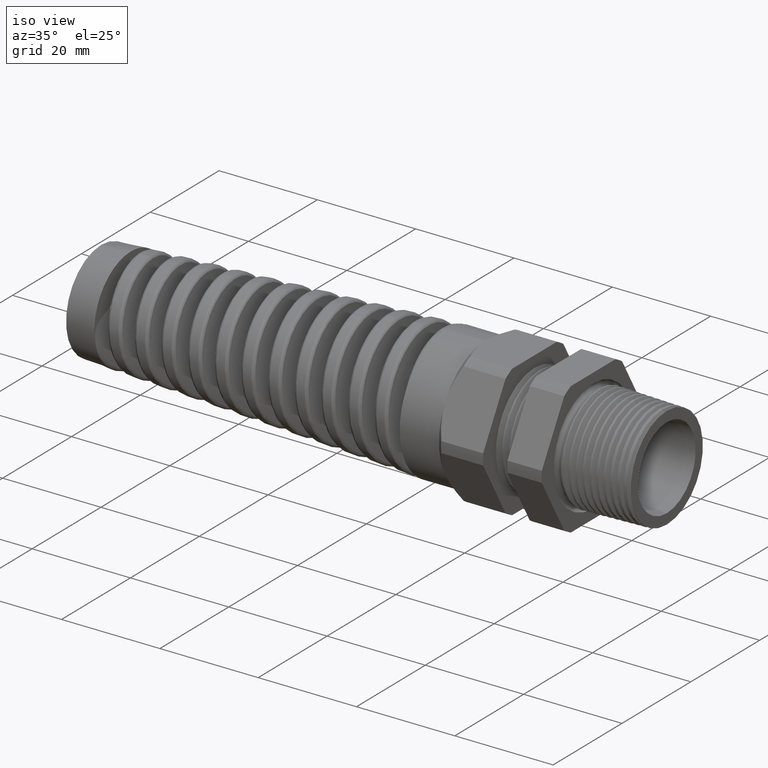
[diagram: clean part render]
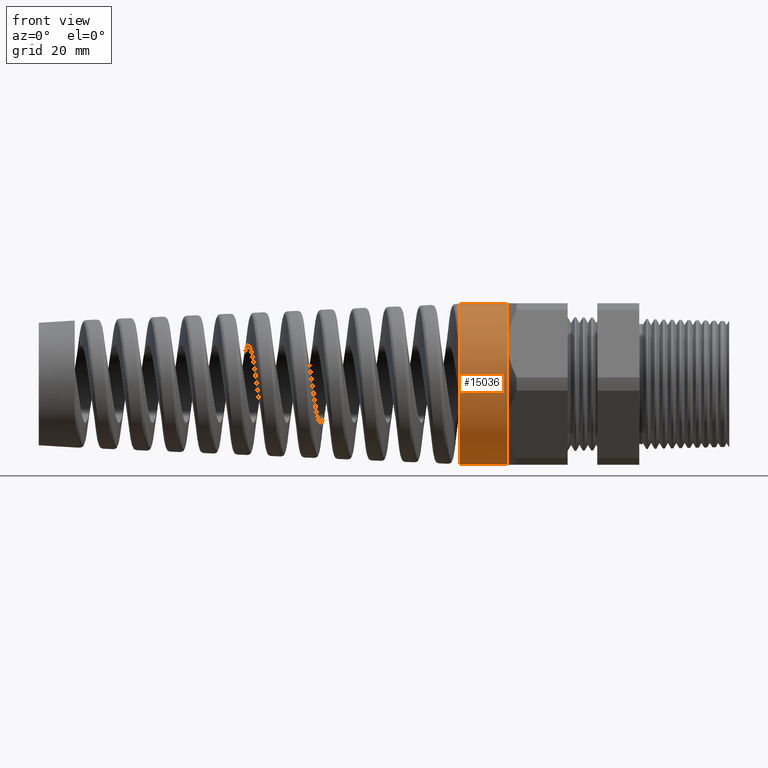
[diagram: tour spotlight — one face highlighted and labeled with its STEP entity id]
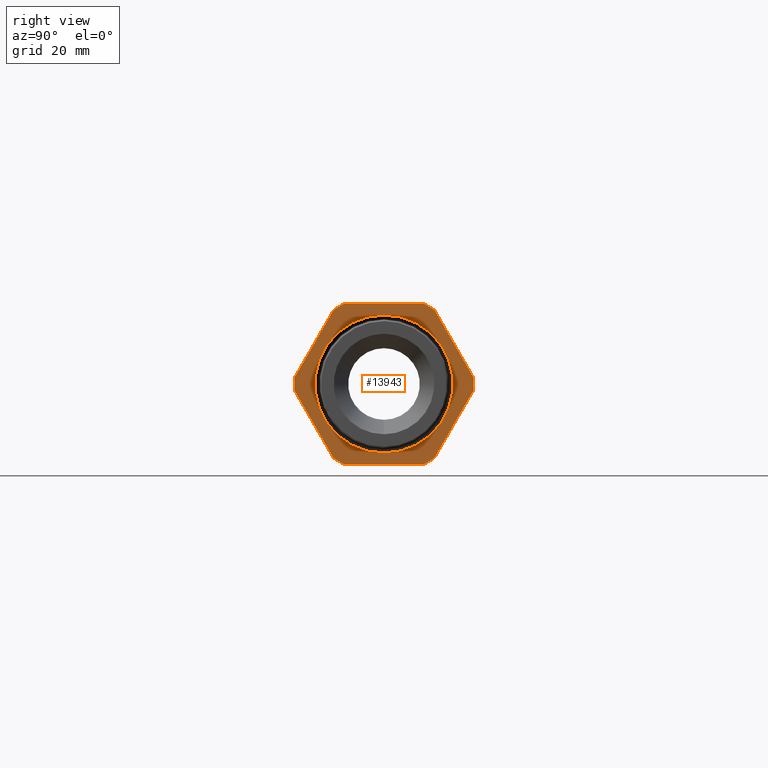
[diagram: tour spotlight — one face highlighted and labeled with its STEP entity id]
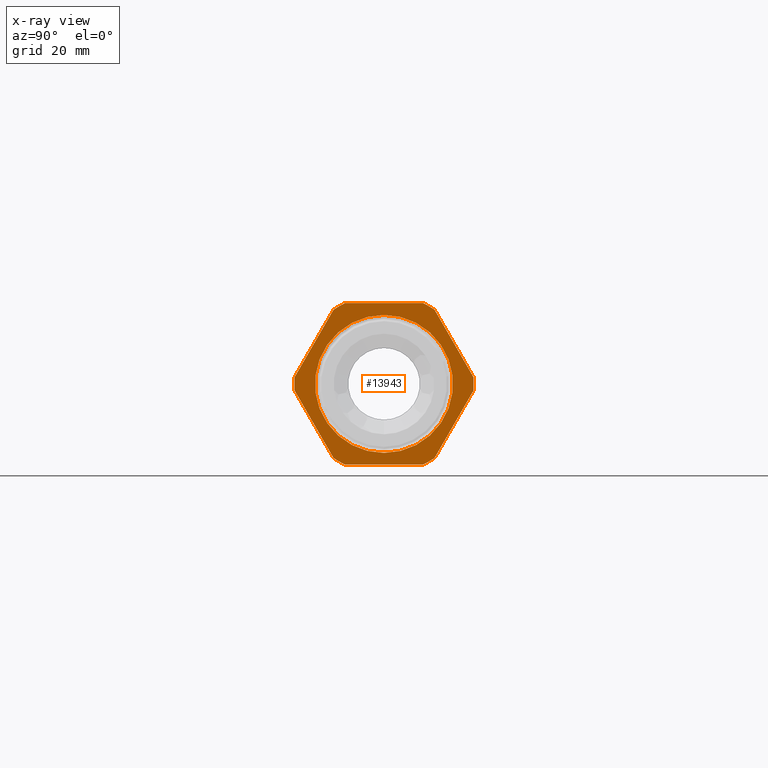
[diagram: x-ray of the same camera — body ghosted, this tour face saturated]
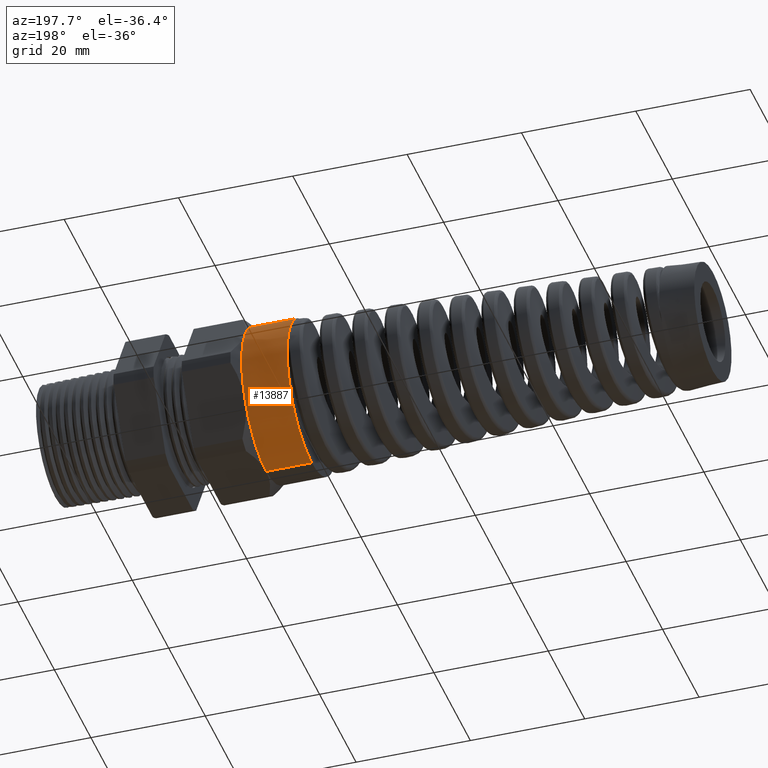
[diagram: tour spotlight — one face highlighted and labeled with its STEP entity id]
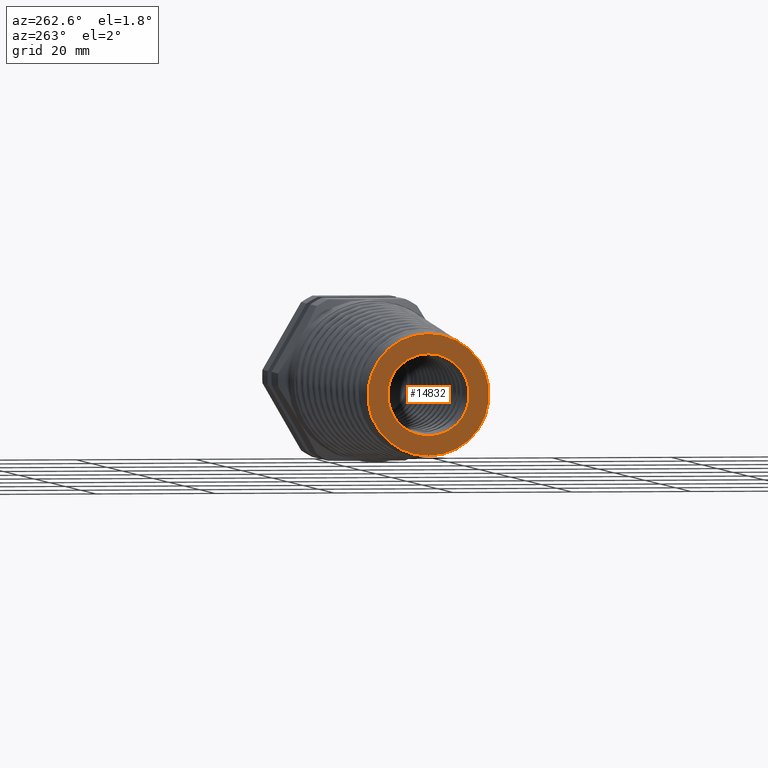
[diagram: tour spotlight — one face highlighted and labeled with its STEP entity id]
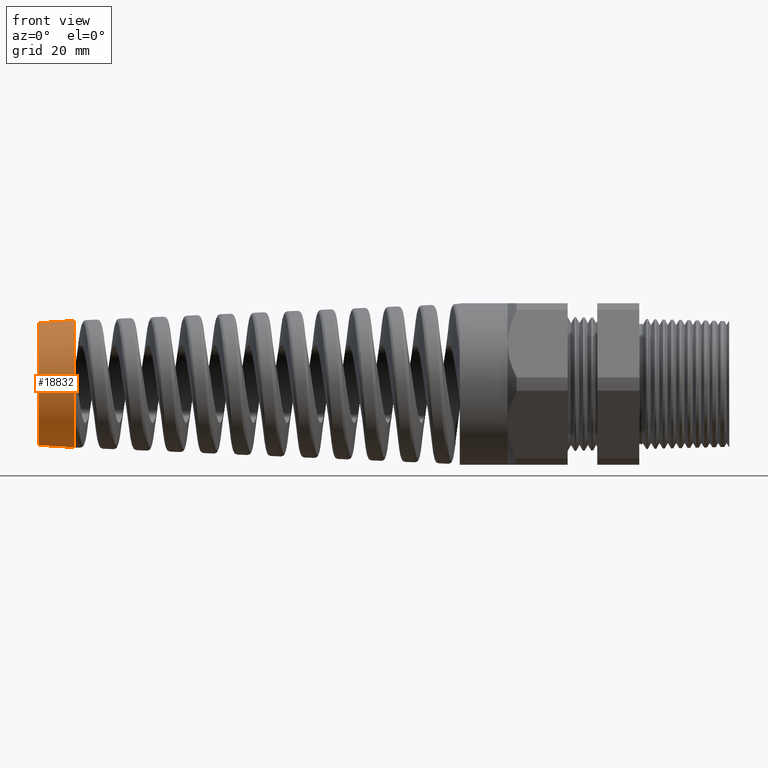
[diagram: tour spotlight — one face highlighted and labeled with its STEP entity id]
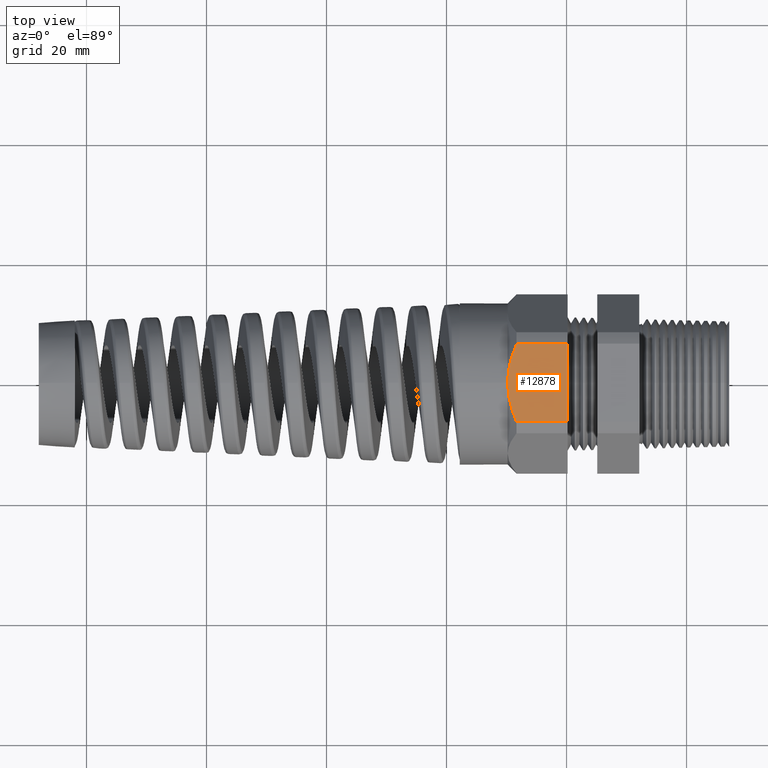
[diagram: tour spotlight — one face highlighted and labeled with its STEP entity id]
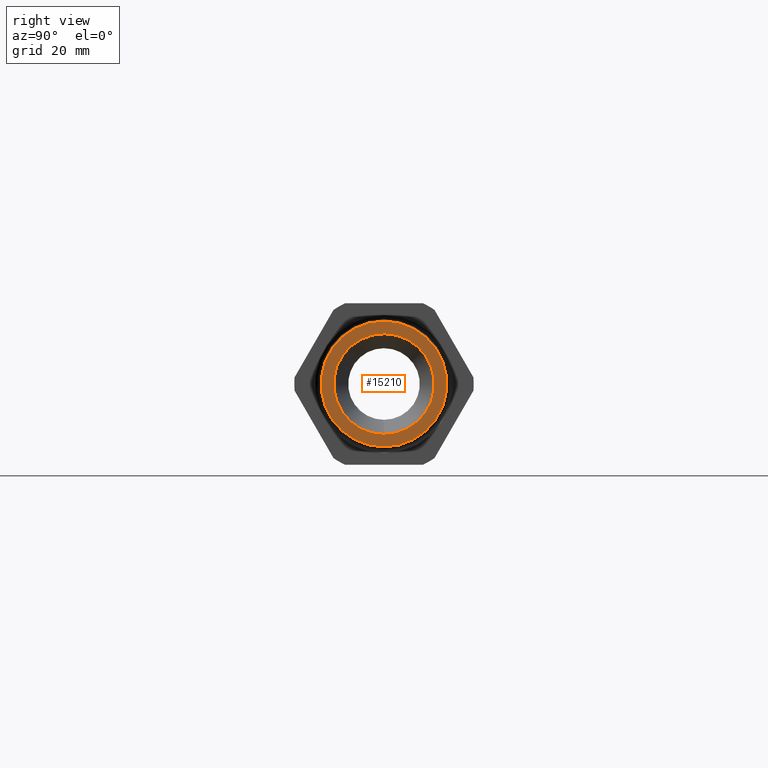
[diagram: tour spotlight — one face highlighted and labeled with its STEP entity id]
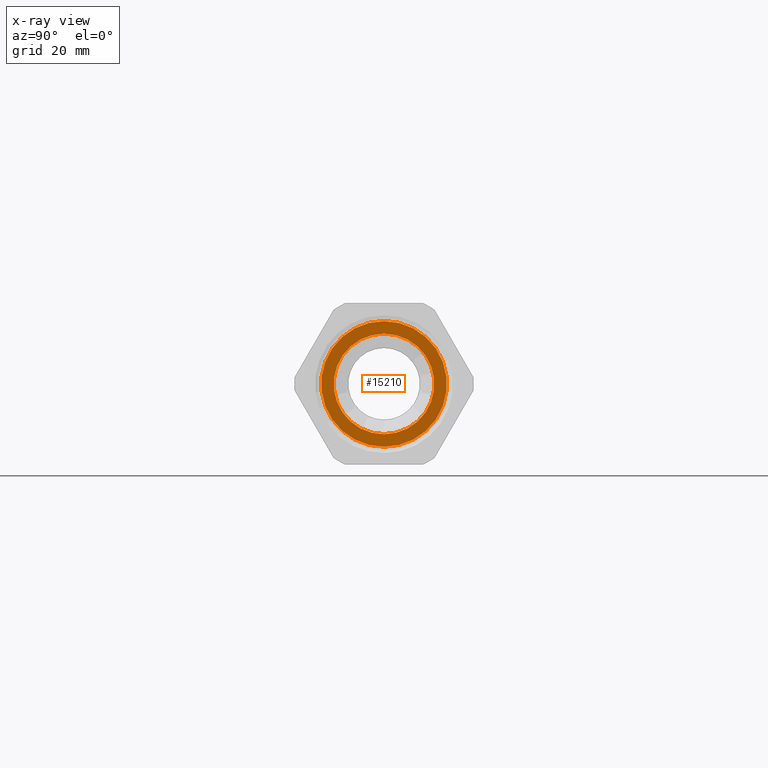
[diagram: x-ray of the same camera — body ghosted, this tour face saturated]
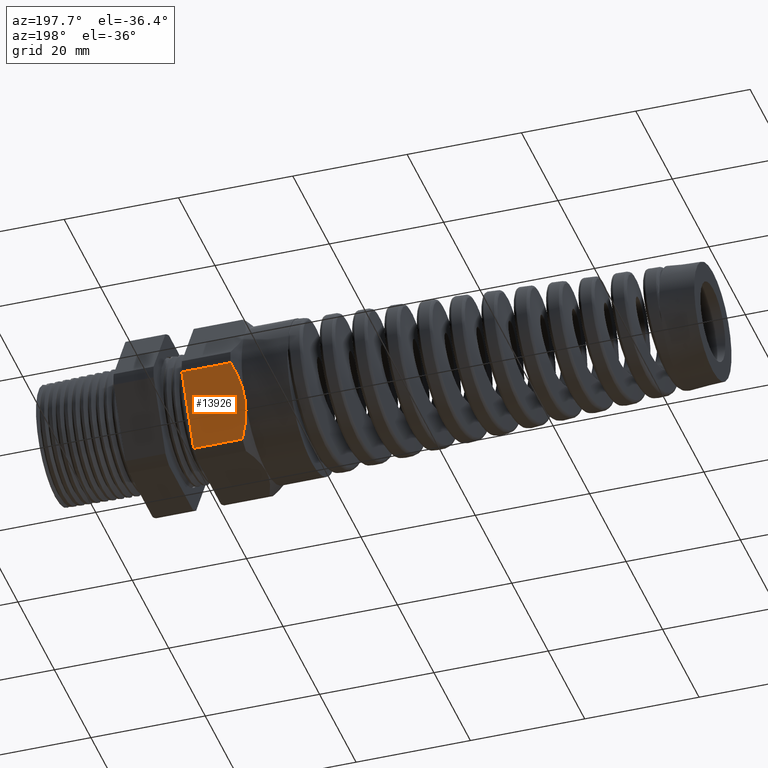
[diagram: tour spotlight — one face highlighted and labeled with its STEP entity id]
A machine part: a face-by-face anatomy tour. The part has 210 B-rep faces; the first image is the clean iso view, then the 8 largest visible faces are spotlighted one at a time (largest first), each with its STEP entity span.

Face 1 — front view, entity #15036. In plain terms, the highlighted cylindrical surface (partial cylindrical patch) has radius 13.462 mm, axis along (1, 0, 0).
Definition (entity closure, byte-faithful):
#576 = VERTEX_POINT ( 'NONE', #1642 ) ;
#1642 = CARTESIAN_POINT ( 'NONE',  ( -1.173779527559055200, -0.4589934640057526900, -0.2650000000000002400 ) ) ;
#8881 = DIRECTION ( 'NONE',  ( 1.000000000000000000, 0.0000000000000000000, 0.0000000000000000000 ) ) ;
#8882 = VECTOR ( 'NONE', #8881, 39.37007874015748100 ) ;
#8883 = CARTESIAN_POINT ( 'NONE',  ( 0.0000000000000000000, 0.0000000000000000000, -0.5299999999999999200 ) ) ;
#8884 = LINE ( 'NONE', #8883, #8882 ) ;
#9024 = CARTESIAN_POINT ( 'NONE',  ( -1.173779527559055200, 0.0000000000000000000, 0.5299999999999999200 ) ) ;
#9026 = CARTESIAN_POINT ( 'NONE',  ( -1.173779527559055200, 0.0000000000000000000, -0.5300000000000001400 ) ) ;
#9063 = CARTESIAN_POINT ( 'NONE',  ( -1.487985188310925600, 6.490628035480971200E-017, 0.5299999999999999200 ) ) ;
#9064 = CARTESIAN_POINT ( 'NONE',  ( -1.487985188310925600, 0.0000000000000000000, -0.5299999999999999200 ) ) ;
#9117 = DIRECTION ( 'NONE',  ( 1.000000000000000000, 0.0000000000000000000, 0.0000000000000000000 ) ) ;
#9118 = VECTOR ( 'NONE', #9117, 39.37007874015748100 ) ;
#9119 = CARTESIAN_POINT ( 'NONE',  ( 0.0000000000000000000, 6.490628035480971200E-017, 0.5299999999999999200 ) ) ;
#9120 = LINE ( 'NONE', #9119, #9118 ) ;
#11656 = DIRECTION ( 'NONE',  ( 0.0000000000000000000, 0.0000000000000000000, -1.000000000000000000 ) ) ;
#11657 = DIRECTION ( 'NONE',  ( 1.000000000000000000, 0.0000000000000000000, 0.0000000000000000000 ) ) ;
#11658 = CARTESIAN_POINT ( 'NONE',  ( -1.173779527559055200, 0.0000000000000000000, 0.0000000000000000000 ) ) ;
#11659 = AXIS2_PLACEMENT_3D ( 'NONE', #11658, #11657, #11656 ) ;
#11660 = CIRCLE ( 'NONE', #11659, 0.5299999999999999200 ) ;
#11688 = FACE_OUTER_BOUND ( 'NONE', #15037, .T. ) ;
#11694 = CARTESIAN_POINT ( 'NONE',  ( 0.0000000000000000000, 0.0000000000000000000, 0.0000000000000000000 ) ) ;
#11741 = DIRECTION ( 'NONE',  ( 0.0000000000000000000, 0.0000000000000000000, -1.000000000000000000 ) ) ;
#11742 = DIRECTION ( 'NONE',  ( 1.000000000000000000, 0.0000000000000000000, 0.0000000000000000000 ) ) ;
#11743 = AXIS2_PLACEMENT_3D ( 'NONE', #11694, #11742, #11741 ) ;
#11744 = CYLINDRICAL_SURFACE ( 'NONE', #11743, 0.5299999999999999200 ) ;
#11851 = DIRECTION ( 'NONE',  ( 0.0000000000000000000, 0.0000000000000000000, -1.000000000000000000 ) ) ;
#11852 = DIRECTION ( 'NONE',  ( 1.000000000000000000, 0.0000000000000000000, 0.0000000000000000000 ) ) ;
#11853 = CARTESIAN_POINT ( 'NONE',  ( -1.173779527559055200, 0.0000000000000000000, 0.0000000000000000000 ) ) ;
#11854 = AXIS2_PLACEMENT_3D ( 'NONE', #11853, #11852, #11851 ) ;
#11855 = CIRCLE ( 'NONE', #11854, 0.5299999999999999200 ) ;
#11856 = DIRECTION ( 'NONE',  ( 0.0000000000000000000, 0.0000000000000000000, -1.000000000000000000 ) ) ;
#11857 = DIRECTION ( 'NONE',  ( 1.000000000000000000, 0.0000000000000000000, 0.0000000000000000000 ) ) ;
#11858 = CARTESIAN_POINT ( 'NONE',  ( -1.173779527559055200, 0.0000000000000000000, 0.0000000000000000000 ) ) ;
#11859 = AXIS2_PLACEMENT_3D ( 'NONE', #11858, #11857, #11856 ) ;
#11860 = CIRCLE ( 'NONE', #11859, 0.5299999999999999200 ) ;
#11861 = DIRECTION ( 'NONE',  ( 0.0000000000000000000, 0.0000000000000000000, 1.000000000000000000 ) ) ;
#11862 = DIRECTION ( 'NONE',  ( -1.000000000000000000, 0.0000000000000000000, 0.0000000000000000000 ) ) ;
#11863 = CARTESIAN_POINT ( 'NONE',  ( -1.487985188310925600, 0.0000000000000000000, 0.0000000000000000000 ) ) ;
#11864 = AXIS2_PLACEMENT_3D ( 'NONE', #11863, #11862, #11861 ) ;
#11865 = CIRCLE ( 'NONE', #11864, 0.5299999999999999200 ) ;
#12842 = VERTEX_POINT ( 'NONE', #18774 ) ;
#13845 = EDGE_CURVE ( 'NONE', #13952, #13931, #8884, .T. ) ;
#13931 = VERTEX_POINT ( 'NONE', #9026 ) ;
#13934 = VERTEX_POINT ( 'NONE', #9024 ) ;
#13952 = VERTEX_POINT ( 'NONE', #9064 ) ;
#13953 = VERTEX_POINT ( 'NONE', #9063 ) ;
#14025 = EDGE_CURVE ( 'NONE', #13953, #13934, #9120, .T. ) ;
#15019 = ORIENTED_EDGE ( 'NONE', *, *, #15020, .F. ) ;
#15020 = EDGE_CURVE ( 'NONE', #13934, #12842, #11660, .T. ) ;
#15036 = ADVANCED_FACE ( 'NONE', ( #11688 ), #11744, .T. ) ;
#15037 = EDGE_LOOP ( 'NONE', ( #15038, #15039, #15094, #15095, #15097, #15019 ) ) ;
#15038 = ORIENTED_EDGE ( 'NONE', *, *, #14025, .F. ) ;
#15039 = ORIENTED_EDGE ( 'NONE', *, *, #15093, .F. ) ;
#15093 = EDGE_CURVE ( 'NONE', #13952, #13953, #11865, .T. ) ;
#15094 = ORIENTED_EDGE ( 'NONE', *, *, #13845, .T. ) ;
#15095 = ORIENTED_EDGE ( 'NONE', *, *, #15096, .F. ) ;
#15096 = EDGE_CURVE ( 'NONE', #576, #13931, #11860, .T. ) ;
#15097 = ORIENTED_EDGE ( 'NONE', *, *, #15098, .F. ) ;
#15098 = EDGE_CURVE ( 'NONE', #12842, #576, #11855, .T. ) ;
#18774 = CARTESIAN_POINT ( 'NONE',  ( -1.173779527559055200, -0.4589934640057528600, 0.2649999999999998500 ) ) ;

Face 2 — right view, entity #13943. An x-ray twin of the same camera follows (body ghosted, this face saturated) — the face is partly hidden behind the body. In plain terms, the highlighted planar face has unit normal (1, 0, 0).
Definition (entity closure, byte-faithful):
#6318 = CARTESIAN_POINT ( 'NONE',  ( -0.3100000000000000000, 0.0000000000000000000, -0.4526738836800274200 ) ) ;
#6335 = DIRECTION ( 'NONE',  ( 0.0000000000000000000, 0.0000000000000000000, -1.000000000000000000 ) ) ;
#6336 = DIRECTION ( 'NONE',  ( -1.000000000000000000, 0.0000000000000000000, 0.0000000000000000000 ) ) ;
#6337 = CARTESIAN_POINT ( 'NONE',  ( -0.3100000000000000000, 0.0000000000000000000, 0.0000000000000000000 ) ) ;
#6338 = AXIS2_PLACEMENT_3D ( 'NONE', #6337, #6336, #6335 ) ;
#6339 = CIRCLE ( 'NONE', #6338, 0.4526738836800274800 ) ;
#7703 = CARTESIAN_POINT ( 'NONE',  ( -0.3100000000000000000, 5.543656227063468900E-017, 0.4526738836800274200 ) ) ;
#8874 = DIRECTION ( 'NONE',  ( 0.0000000000000000000, -1.000000000000000000, 0.0000000000000000000 ) ) ;
#8875 = VECTOR ( 'NONE', #8874, 39.37007874015748100 ) ;
#8877 = CARTESIAN_POINT ( 'NONE',  ( -0.3100000000000000000, 1.060000000000000100, 0.5299999999999999200 ) ) ;
#8878 = LINE ( 'NONE', #8877, #8875 ) ;
#8896 = CARTESIAN_POINT ( 'NONE',  ( -0.3100000000000000000, -0.3313250556190258700, -0.4861281698472630400 ) ) ;
#8898 = CARTESIAN_POINT ( 'NONE',  ( -0.3100000000000000000, 0.5866618723924791300, -0.04387183015273695600 ) ) ;
#8903 = CARTESIAN_POINT ( 'NONE',  ( -0.3100000000000000000, 0.2553368167734533200, 0.5299999999999999200 ) ) ;
#8904 = CARTESIAN_POINT ( 'NONE',  ( -0.3100000000000000000, 0.3313250556190260900, 0.4861281698472628700 ) ) ;
#8905 = CARTESIAN_POINT ( 'NONE',  ( -0.3100000000000000000, 0.5866618723924791300, 0.04387183015273709400 ) ) ;
#8910 = DIRECTION ( 'NONE',  ( 0.0000000000000000000, 0.0000000000000000000, -1.000000000000000000 ) ) ;
#8911 = DIRECTION ( 'NONE',  ( 1.000000000000000000, 0.0000000000000000000, 0.0000000000000000000 ) ) ;
#8912 = CARTESIAN_POINT ( 'NONE',  ( -0.3100000000000000000, 0.0000000000000000000, 0.0000000000000000000 ) ) ;
#8913 = AXIS2_PLACEMENT_3D ( 'NONE', #8912, #8911, #8910 ) ;
#8914 = CIRCLE ( 'NONE', #8913, 0.5882999999999999300 ) ;
#8915 = DIRECTION ( 'NONE',  ( 0.0000000000000000000, 0.0000000000000000000, -1.000000000000000000 ) ) ;
#8916 = DIRECTION ( 'NONE',  ( 1.000000000000000000, 0.0000000000000000000, 0.0000000000000000000 ) ) ;
#8917 = CARTESIAN_POINT ( 'NONE',  ( -0.3100000000000000000, 0.0000000000000000000, 0.0000000000000000000 ) ) ;
#8918 = AXIS2_PLACEMENT_3D ( 'NONE', #8917, #8916, #8915 ) ;
#8919 = CIRCLE ( 'NONE', #8918, 0.5883000000000000500 ) ;
#8920 = DIRECTION ( 'NONE',  ( 0.0000000000000000000, -0.5000000000000000000, 0.8660254037844386000 ) ) ;
#8921 = VECTOR ( 'NONE', #8920, 39.37007874015748100 ) ;
#8922 = CARTESIAN_POINT ( 'NONE',  ( -0.3100000000000000000, 0.7239934640057527100, -0.1939934640057524000 ) ) ;
#8923 = LINE ( 'NONE', #8922, #8921 ) ;
#8928 = CIRCLE ( 'NONE', #8994, 0.5883000000000000500 ) ;
#8931 = CARTESIAN_POINT ( 'NONE',  ( -0.3100000000000000000, -0.5866618723924792400, 0.04387183015273651100 ) ) ;
#8938 = DIRECTION ( 'NONE',  ( 0.0000000000000000000, -0.4999999999999994400, -0.8660254037844389300 ) ) ;
#8939 = VECTOR ( 'NONE', #8938, 39.37007874015748100 ) ;
#8940 = CARTESIAN_POINT ( 'NONE',  ( -0.3100000000000000000, -0.1939934640057531200, 0.7239934640057518200 ) ) ;
#8941 = LINE ( 'NONE', #8940, #8939 ) ;
#8942 = DIRECTION ( 'NONE',  ( 0.0000000000000000000, 0.5000000000000002200, -0.8660254037844386000 ) ) ;
#8943 = VECTOR ( 'NONE', #8942, 39.37007874015747400 ) ;
#8944 = CARTESIAN_POINT ( 'NONE',  ( -0.3100000000000000000, -0.1939934640057522900, -0.7239934640057527100 ) ) ;
#8945 = LINE ( 'NONE', #8944, #8943 ) ;
#8946 = DIRECTION ( 'NONE',  ( 0.0000000000000000000, 0.4999999999999997200, 0.8660254037844388200 ) ) ;
#8947 = VECTOR ( 'NONE', #8946, 39.37007874015748100 ) ;
#8948 = CARTESIAN_POINT ( 'NONE',  ( -0.3100000000000000000, 0.7239934640057523700, 0.1939934640057524300 ) ) ;
#8949 = LINE ( 'NONE', #8948, #8947 ) ;
#8950 = DIRECTION ( 'NONE',  ( 0.0000000000000000000, 0.0000000000000000000, -1.000000000000000000 ) ) ;
#8951 = DIRECTION ( 'NONE',  ( 1.000000000000000000, 0.0000000000000000000, 0.0000000000000000000 ) ) ;
#8952 = CARTESIAN_POINT ( 'NONE',  ( -0.3100000000000000000, 0.0000000000000000000, 0.0000000000000000000 ) ) ;
#8953 = AXIS2_PLACEMENT_3D ( 'NONE', #8952, #8951, #8950 ) ;
#8954 = CIRCLE ( 'NONE', #8953, 0.5883000000000000500 ) ;
#8955 = CARTESIAN_POINT ( 'NONE',  ( -0.3100000000000000000, 0.3313250556190262000, -0.4861281698472628700 ) ) ;
#8960 = CIRCLE ( 'NONE', #9020, 0.5883000000000000500 ) ;
#8965 = DIRECTION ( 'NONE',  ( 0.0000000000000000000, 0.0000000000000000000, -1.000000000000000000 ) ) ;
#8966 = DIRECTION ( 'NONE',  ( -1.000000000000000000, 0.0000000000000000000, 0.0000000000000000000 ) ) ;
#8967 = AXIS2_PLACEMENT_3D ( 'NONE', #8974, #8966, #8965 ) ;
#8968 = CIRCLE ( 'NONE', #8967, 0.4526738836800274800 ) ;
#8974 = CARTESIAN_POINT ( 'NONE',  ( -0.3100000000000000000, 0.0000000000000000000, 0.0000000000000000000 ) ) ;
#8980 = DIRECTION ( 'NONE',  ( 0.0000000000000000000, 0.0000000000000000000, -1.000000000000000000 ) ) ;
#8981 = DIRECTION ( 'NONE',  ( 1.000000000000000000, 0.0000000000000000000, 0.0000000000000000000 ) ) ;
#8982 = CARTESIAN_POINT ( 'NONE',  ( -0.3100000000000000000, 0.0000000000000000000, 0.0000000000000000000 ) ) ;
#8983 = AXIS2_PLACEMENT_3D ( 'NONE', #8982, #8981, #8980 ) ;
#8984 = CIRCLE ( 'NONE', #8983, 0.5883000000000000500 ) ;
#8985 = CARTESIAN_POINT ( 'NONE',  ( -0.3100000000000000000, -0.2553368167734533800, 0.5300000000000000300 ) ) ;
#8987 = CARTESIAN_POINT ( 'NONE',  ( -0.3100000000000000000, 0.2553368167734530500, -0.5300000000000001400 ) ) ;
#8989 = CARTESIAN_POINT ( 'NONE',  ( -0.3100000000000000000, -0.3313250556190262000, 0.4861281698472629300 ) ) ;
#8990 = CARTESIAN_POINT ( 'NONE',  ( -0.3100000000000000000, -0.5866618723924791300, -0.04387183015273716400 ) ) ;
#8991 = DIRECTION ( 'NONE',  ( 0.0000000000000000000, 0.0000000000000000000, -1.000000000000000000 ) ) ;
#8992 = DIRECTION ( 'NONE',  ( 1.000000000000000000, 0.0000000000000000000, 0.0000000000000000000 ) ) ;
#8993 = CARTESIAN_POINT ( 'NONE',  ( -0.3100000000000000000, 0.0000000000000000000, 0.0000000000000000000 ) ) ;
#8994 = AXIS2_PLACEMENT_3D ( 'NONE', #8993, #8992, #8991 ) ;
#9017 = DIRECTION ( 'NONE',  ( 0.0000000000000000000, 0.0000000000000000000, -1.000000000000000000 ) ) ;
#9018 = DIRECTION ( 'NONE',  ( 1.000000000000000000, 0.0000000000000000000, 0.0000000000000000000 ) ) ;
#9019 = CARTESIAN_POINT ( 'NONE',  ( -0.3100000000000000000, 0.0000000000000000000, 0.0000000000000000000 ) ) ;
#9020 = AXIS2_PLACEMENT_3D ( 'NONE', #9019, #9018, #9017 ) ;
#9044 = DIRECTION ( 'NONE',  ( 0.0000000000000000000, 1.000000000000000000, 0.0000000000000000000 ) ) ;
#9045 = VECTOR ( 'NONE', #9044, 39.37007874015748100 ) ;
#9046 = CARTESIAN_POINT ( 'NONE',  ( -0.3100000000000000000, 1.060000000000000100, -0.5300000000000001400 ) ) ;
#9047 = LINE ( 'NONE', #9046, #9045 ) ;
#9054 = CARTESIAN_POINT ( 'NONE',  ( -0.3100000000000000000, -0.2553368167734531000, -0.5300000000000001400 ) ) ;
#9069 = DIRECTION ( 'NONE',  ( 0.0000000000000000000, 0.0000000000000000000, -1.000000000000000000 ) ) ;
#9070 = DIRECTION ( 'NONE',  ( 1.000000000000000000, 0.0000000000000000000, 0.0000000000000000000 ) ) ;
#9071 = CARTESIAN_POINT ( 'NONE',  ( -0.3100000000000000000, 1.060000000000000100, 0.0000000000000000000 ) ) ;
#9072 = AXIS2_PLACEMENT_3D ( 'NONE', #9071, #9070, #9069 ) ;
#9073 = PLANE ( 'NONE',  #9072 ) ;
#9074 = FACE_BOUND ( 'NONE', #13906, .T. ) ;
#9075 = FACE_OUTER_BOUND ( 'NONE', #13945, .T. ) ;
#13253 = VERTEX_POINT ( 'NONE', #6318 ) ;
#13263 = EDGE_CURVE ( 'NONE', #13253, #13349, #6339, .T. ) ;
#13349 = VERTEX_POINT ( 'NONE', #7703 ) ;
#13796 = ORIENTED_EDGE ( 'NONE', *, *, #13848, .T. ) ;
#13848 = EDGE_CURVE ( 'NONE', #13869, #13901, #8878, .T. ) ;
#13860 = ORIENTED_EDGE ( 'NONE', *, *, #13864, .T. ) ;
#13862 = EDGE_CURVE ( 'NONE', #13867, #13868, #8923, .T. ) ;
#13863 = EDGE_CURVE ( 'NONE', #13875, #13867, #8919, .T. ) ;
#13864 = EDGE_CURVE ( 'NONE', #13868, #13869, #8914, .T. ) ;
#13866 = ORIENTED_EDGE ( 'NONE', *, *, #13863, .T. ) ;
#13867 = VERTEX_POINT ( 'NONE', #8905 ) ;
#13868 = VERTEX_POINT ( 'NONE', #8904 ) ;
#13869 = VERTEX_POINT ( 'NONE', #8903 ) ;
#13870 = ORIENTED_EDGE ( 'NONE', *, *, #13862, .T. ) ;
#13875 = VERTEX_POINT ( 'NONE', #8898 ) ;
#13876 = VERTEX_POINT ( 'NONE', #8896 ) ;
#13878 = VERTEX_POINT ( 'NONE', #8955 ) ;
#13879 = EDGE_CURVE ( 'NONE', #13876, #13920, #8954, .T. ) ;
#13880 = EDGE_CURVE ( 'NONE', #13878, #13875, #8949, .T. ) ;
#13881 = ORIENTED_EDGE ( 'NONE', *, *, #13879, .T. ) ;
#13882 = EDGE_CURVE ( 'NONE', #13891, #13876, #8945, .T. ) ;
#13883 = ORIENTED_EDGE ( 'NONE', *, *, #13880, .T. ) ;
#13884 = ORIENTED_EDGE ( 'NONE', *, *, #13882, .T. ) ;
#13885 = EDGE_CURVE ( 'NONE', #13892, #13888, #8941, .T. ) ;
#13886 = ORIENTED_EDGE ( 'NONE', *, *, #13885, .T. ) ;
#13888 = VERTEX_POINT ( 'NONE', #8931 ) ;
#13889 = EDGE_CURVE ( 'NONE', #13888, #13891, #8928, .T. ) ;
#13890 = ORIENTED_EDGE ( 'NONE', *, *, #13889, .T. ) ;
#13891 = VERTEX_POINT ( 'NONE', #8990 ) ;
#13892 = VERTEX_POINT ( 'NONE', #8989 ) ;
#13894 = ORIENTED_EDGE ( 'NONE', *, *, #13912, .T. ) ;
#13896 = VERTEX_POINT ( 'NONE', #8987 ) ;
#13898 = ORIENTED_EDGE ( 'NONE', *, *, #13902, .T. ) ;
#13901 = VERTEX_POINT ( 'NONE', #8985 ) ;
#13902 = EDGE_CURVE ( 'NONE', #13901, #13892, #8984, .T. ) ;
#13905 = ORIENTED_EDGE ( 'NONE', *, *, #13908, .T. ) ;
#13906 = EDGE_LOOP ( 'NONE', ( #13909, #13905 ) ) ;
#13908 = EDGE_CURVE ( 'NONE', #13349, #13253, #8968, .T. ) ;
#13909 = ORIENTED_EDGE ( 'NONE', *, *, #13263, .T. ) ;
#13912 = EDGE_CURVE ( 'NONE', #13896, #13878, #8960, .T. ) ;
#13918 = ORIENTED_EDGE ( 'NONE', *, *, #13921, .T. ) ;
#13920 = VERTEX_POINT ( 'NONE', #9054 ) ;
#13921 = EDGE_CURVE ( 'NONE', #13920, #13896, #9047, .T. ) ;
#13943 = ADVANCED_FACE ( 'NONE', ( #9075, #9074 ), #9073, .T. ) ;
#13945 = EDGE_LOOP ( 'NONE', ( #13883, #13866, #13870, #13860, #13796, #13898, #13886, #13890, #13884, #13881, #13918, #13894 ) ) ;

Face 3 — auxiliary view, entity #13887. In plain terms, the highlighted cylindrical surface (partial cylindrical patch) has radius 13.462 mm, axis along (1, 0, 0).
Definition (entity closure, byte-faithful):
#8716 = DIRECTION ( 'NONE',  ( 0.0000000000000000000, 0.0000000000000000000, -1.000000000000000000 ) ) ;
#8717 = DIRECTION ( 'NONE',  ( 1.000000000000000000, 0.0000000000000000000, 0.0000000000000000000 ) ) ;
#8719 = CARTESIAN_POINT ( 'NONE',  ( -1.173779527559055200, 0.0000000000000000000, 0.0000000000000000000 ) ) ;
#8720 = AXIS2_PLACEMENT_3D ( 'NONE', #8719, #8717, #8716 ) ;
#8881 = DIRECTION ( 'NONE',  ( 1.000000000000000000, 0.0000000000000000000, 0.0000000000000000000 ) ) ;
#8882 = VECTOR ( 'NONE', #8881, 39.37007874015748100 ) ;
#8883 = CARTESIAN_POINT ( 'NONE',  ( 0.0000000000000000000, 0.0000000000000000000, -0.5299999999999999200 ) ) ;
#8884 = LINE ( 'NONE', #8883, #8882 ) ;
#8932 = DIRECTION ( 'NONE',  ( 0.0000000000000000000, 0.0000000000000000000, -1.000000000000000000 ) ) ;
#8933 = DIRECTION ( 'NONE',  ( 1.000000000000000000, 0.0000000000000000000, 0.0000000000000000000 ) ) ;
#8934 = CARTESIAN_POINT ( 'NONE',  ( 0.0000000000000000000, 0.0000000000000000000, 0.0000000000000000000 ) ) ;
#8935 = AXIS2_PLACEMENT_3D ( 'NONE', #8934, #8933, #8932 ) ;
#8936 = CYLINDRICAL_SURFACE ( 'NONE', #8935, 0.5299999999999999200 ) ;
#8937 = FACE_OUTER_BOUND ( 'NONE', #13795, .T. ) ;
#9021 = CIRCLE ( 'NONE', #8720, 0.5299999999999999200 ) ;
#9024 = CARTESIAN_POINT ( 'NONE',  ( -1.173779527559055200, 0.0000000000000000000, 0.5299999999999999200 ) ) ;
#9025 = CARTESIAN_POINT ( 'NONE',  ( -1.173779527559055200, 0.4589934640057526900, 0.2650000000000001200 ) ) ;
#9026 = CARTESIAN_POINT ( 'NONE',  ( -1.173779527559055200, 0.0000000000000000000, -0.5300000000000001400 ) ) ;
#9063 = CARTESIAN_POINT ( 'NONE',  ( -1.487985188310925600, 6.490628035480971200E-017, 0.5299999999999999200 ) ) ;
#9064 = CARTESIAN_POINT ( 'NONE',  ( -1.487985188310925600, 0.0000000000000000000, -0.5299999999999999200 ) ) ;
#9076 = DIRECTION ( 'NONE',  ( 0.0000000000000000000, 0.0000000000000000000, 1.000000000000000000 ) ) ;
#9077 = DIRECTION ( 'NONE',  ( -1.000000000000000000, 0.0000000000000000000, 0.0000000000000000000 ) ) ;
#9078 = CARTESIAN_POINT ( 'NONE',  ( -1.487985188310925600, 0.0000000000000000000, 0.0000000000000000000 ) ) ;
#9079 = AXIS2_PLACEMENT_3D ( 'NONE', #9078, #9077, #9076 ) ;
#9080 = CIRCLE ( 'NONE', #9079, 0.5299999999999999200 ) ;
#9081 = DIRECTION ( 'NONE',  ( 0.0000000000000000000, 0.0000000000000000000, -1.000000000000000000 ) ) ;
#9082 = DIRECTION ( 'NONE',  ( 1.000000000000000000, 0.0000000000000000000, 0.0000000000000000000 ) ) ;
#9083 = CARTESIAN_POINT ( 'NONE',  ( -1.173779527559055200, 0.0000000000000000000, 0.0000000000000000000 ) ) ;
#9084 = AXIS2_PLACEMENT_3D ( 'NONE', #9083, #9082, #9081 ) ;
#9085 = CIRCLE ( 'NONE', #9084, 0.5299999999999999200 ) ;
#9086 = CARTESIAN_POINT ( 'NONE',  ( -1.173779527559055200, 0.4589934640057526900, -0.2649999999999999000 ) ) ;
#9088 = CARTESIAN_POINT ( 'NONE',  ( -1.173779527559055200, 0.0000000000000000000, 0.0000000000000000000 ) ) ;
#9117 = DIRECTION ( 'NONE',  ( 1.000000000000000000, 0.0000000000000000000, 0.0000000000000000000 ) ) ;
#9118 = VECTOR ( 'NONE', #9117, 39.37007874015748100 ) ;
#9119 = CARTESIAN_POINT ( 'NONE',  ( 0.0000000000000000000, 6.490628035480971200E-017, 0.5299999999999999200 ) ) ;
#9120 = LINE ( 'NONE', #9119, #9118 ) ;
#9134 = DIRECTION ( 'NONE',  ( 0.0000000000000000000, 0.0000000000000000000, -1.000000000000000000 ) ) ;
#9135 = DIRECTION ( 'NONE',  ( 1.000000000000000000, 0.0000000000000000000, 0.0000000000000000000 ) ) ;
#9136 = AXIS2_PLACEMENT_3D ( 'NONE', #9088, #9135, #9134 ) ;
#9137 = CIRCLE ( 'NONE', #9136, 0.5299999999999999200 ) ;
#13795 = EDGE_LOOP ( 'NONE', ( #13946, #14008, #13935, #13940, #13937, #13798 ) ) ;
#13798 = ORIENTED_EDGE ( 'NONE', *, *, #13845, .F. ) ;
#13845 = EDGE_CURVE ( 'NONE', #13952, #13931, #8884, .T. ) ;
#13887 = ADVANCED_FACE ( 'NONE', ( #8937 ), #8936, .T. ) ;
#13931 = VERTEX_POINT ( 'NONE', #9026 ) ;
#13933 = VERTEX_POINT ( 'NONE', #9025 ) ;
#13934 = VERTEX_POINT ( 'NONE', #9024 ) ;
#13935 = ORIENTED_EDGE ( 'NONE', *, *, #13987, .F. ) ;
#13936 = EDGE_CURVE ( 'NONE', #13931, #13938, #9021, .T. ) ;
#13937 = ORIENTED_EDGE ( 'NONE', *, *, #13936, .F. ) ;
#13938 = VERTEX_POINT ( 'NONE', #9086 ) ;
#13939 = EDGE_CURVE ( 'NONE', #13938, #13933, #9085, .T. ) ;
#13940 = ORIENTED_EDGE ( 'NONE', *, *, #13939, .F. ) ;
#13941 = EDGE_CURVE ( 'NONE', #13953, #13952, #9080, .T. ) ;
#13946 = ORIENTED_EDGE ( 'NONE', *, *, #13941, .F. ) ;
#13952 = VERTEX_POINT ( 'NONE', #9064 ) ;
#13953 = VERTEX_POINT ( 'NONE', #9063 ) ;
#13987 = EDGE_CURVE ( 'NONE', #13933, #13934, #9137, .T. ) ;
#14008 = ORIENTED_EDGE ( 'NONE', *, *, #14025, .T. ) ;
#14025 = EDGE_CURVE ( 'NONE', #13953, #13934, #9120, .T. ) ;

Face 4 — auxiliary view, entity #14832. In plain terms, the highlighted planar face has unit normal (-1, 0, 0).
Definition (entity closure, byte-faithful):
#10913 = DIRECTION ( 'NONE',  ( 0.0000000000000000000, 0.0000000000000000000, 1.000000000000000000 ) ) ;
#10914 = DIRECTION ( 'NONE',  ( -1.000000000000000000, 0.0000000000000000000, 0.0000000000000000000 ) ) ;
#10915 = CARTESIAN_POINT ( 'NONE',  ( -4.250000472440945000, 0.0000000000000000000, 0.0000000000000000000 ) ) ;
#10916 = AXIS2_PLACEMENT_3D ( 'NONE', #10915, #10914, #10913 ) ;
#10917 = CIRCLE ( 'NONE', #10916, 0.4018686470454270200 ) ;
#10920 = DIRECTION ( 'NONE',  ( 0.0000000000000000000, 0.0000000000000000000, 1.000000000000000000 ) ) ;
#10937 = DIRECTION ( 'NONE',  ( -1.000000000000000000, 0.0000000000000000000, 0.0000000000000000000 ) ) ;
#10938 = CARTESIAN_POINT ( 'NONE',  ( -4.250000472440945000, 0.0000000000000000000, 0.0000000000000000000 ) ) ;
#10939 = AXIS2_PLACEMENT_3D ( 'NONE', #10938, #10937, #10920 ) ;
#10940 = PLANE ( 'NONE',  #10939 ) ;
#10941 = FACE_OUTER_BOUND ( 'NONE', #14833, .T. ) ;
#10943 = FACE_BOUND ( 'NONE', #14837, .T. ) ;
#10949 = CARTESIAN_POINT ( 'NONE',  ( -4.250000472440945000, 3.303909445771373600E-017, -0.2697846798008767800 ) ) ;
#10955 = DIRECTION ( 'NONE',  ( 0.0000000000000000000, 0.0000000000000000000, 1.000000000000000000 ) ) ;
#10956 = DIRECTION ( 'NONE',  ( -1.000000000000000000, 0.0000000000000000000, 0.0000000000000000000 ) ) ;
#10957 = CARTESIAN_POINT ( 'NONE',  ( -4.250000472440945000, 0.0000000000000000000, 0.0000000000000000000 ) ) ;
#10958 = AXIS2_PLACEMENT_3D ( 'NONE', #10957, #10956, #10955 ) ;
#10959 = CIRCLE ( 'NONE', #10958, 0.2697846798008767800 ) ;
#10961 = CARTESIAN_POINT ( 'NONE',  ( -4.250000472440945000, 0.0000000000000000000, 0.2697846798008767800 ) ) ;
#10972 = CARTESIAN_POINT ( 'NONE',  ( -4.250000472440945000, 0.0000000000000000000, 0.4018686470454270200 ) ) ;
#11331 = DIRECTION ( 'NONE',  ( 0.0000000000000000000, 0.0000000000000000000, 1.000000000000000000 ) ) ;
#11332 = DIRECTION ( 'NONE',  ( -1.000000000000000000, 0.0000000000000000000, 0.0000000000000000000 ) ) ;
#11333 = AXIS2_PLACEMENT_3D ( 'NONE', #11338, #11332, #11331 ) ;
#11334 = CIRCLE ( 'NONE', #11333, 0.2697846798008767800 ) ;
#11338 = CARTESIAN_POINT ( 'NONE',  ( -4.250000472440945000, 0.0000000000000000000, 0.0000000000000000000 ) ) ;
#12224 = CARTESIAN_POINT ( 'NONE',  ( -4.250000472440945000, -5.009939168875395400E-017, -0.4018686470454270200 ) ) ;
#12254 = CIRCLE ( 'NONE', #12285, 0.4018686470454270200 ) ;
#12282 = DIRECTION ( 'NONE',  ( 0.0000000000000000000, 0.0000000000000000000, 1.000000000000000000 ) ) ;
#12283 = DIRECTION ( 'NONE',  ( -1.000000000000000000, 0.0000000000000000000, 0.0000000000000000000 ) ) ;
#12284 = CARTESIAN_POINT ( 'NONE',  ( -4.250000472440945000, 0.0000000000000000000, 0.0000000000000000000 ) ) ;
#12285 = AXIS2_PLACEMENT_3D ( 'NONE', #12284, #12283, #12282 ) ;
#14832 = ADVANCED_FACE ( 'NONE', ( #10941, #10943 ), #10940, .T. ) ;
#14833 = EDGE_LOOP ( 'NONE', ( #14834, #14836 ) ) ;
#14834 = ORIENTED_EDGE ( 'NONE', *, *, #14835, .T. ) ;
#14835 = EDGE_CURVE ( 'NONE', #18848, #17397, #10917, .T. ) ;
#14836 = ORIENTED_EDGE ( 'NONE', *, *, #18827, .T. ) ;
#14837 = EDGE_LOOP ( 'NONE', ( #14891, #14893 ) ) ;
#14891 = ORIENTED_EDGE ( 'NONE', *, *, #14892, .F. ) ;
#14892 = EDGE_CURVE ( 'NONE', #18852, #18858, #11334, .T. ) ;
#14893 = ORIENTED_EDGE ( 'NONE', *, *, #18855, .F. ) ;
#17397 = VERTEX_POINT ( 'NONE', #12224 ) ;
#18827 = EDGE_CURVE ( 'NONE', #17397, #18848, #12254, .T. ) ;
#18848 = VERTEX_POINT ( 'NONE', #10972 ) ;
#18852 = VERTEX_POINT ( 'NONE', #10961 ) ;
#18855 = EDGE_CURVE ( 'NONE', #18858, #18852, #10959, .T. ) ;
#18858 = VERTEX_POINT ( 'NONE', #10949 ) ;

Face 5 — front view, entity #18832. In plain terms, the highlighted conical surface has half-angle 3.5 deg.
Definition (entity closure, byte-faithful):
#6386 = CARTESIAN_POINT ( 'NONE',  ( -4.013780000000000600, -5.098406814932194300E-017, -0.4163165100731005500 ) ) ;
#8021 = DIRECTION ( 'NONE',  ( 0.0000000000000000000, 0.0000000000000000000, -1.000000000000000000 ) ) ;
#8022 = DIRECTION ( 'NONE',  ( 1.000000000000000000, 0.0000000000000000000, 0.0000000000000000000 ) ) ;
#8023 = CARTESIAN_POINT ( 'NONE',  ( -4.013780000000000600, 0.0000000000000000000, 0.0000000000000000000 ) ) ;
#8024 = AXIS2_PLACEMENT_3D ( 'NONE', #8023, #8022, #8021 ) ;
#8025 = CIRCLE ( 'NONE', #8024, 0.4163165100736735400 ) ;
#10972 = CARTESIAN_POINT ( 'NONE',  ( -4.250000472440945000, 0.0000000000000000000, 0.4018686470454270200 ) ) ;
#10973 = DIRECTION ( 'NONE',  ( 0.9981347984218669200, -7.476289853398327700E-018, -0.06104853953485701200 ) ) ;
#10974 = VECTOR ( 'NONE', #10973, 39.37007874015748900 ) ;
#10975 = CARTESIAN_POINT ( 'NONE',  ( -4.013780000000000600, -5.098406814932194300E-017, -0.4163165100731005500 ) ) ;
#10976 = LINE ( 'NONE', #10975, #10974 ) ;
#12224 = CARTESIAN_POINT ( 'NONE',  ( -4.250000472440945000, -5.009939168875395400E-017, -0.4018686470454270200 ) ) ;
#12254 = CIRCLE ( 'NONE', #12285, 0.4018686470454270200 ) ;
#12274 = DIRECTION ( 'NONE',  ( 0.0000000000000000000, 0.0000000000000000000, 1.000000000000000000 ) ) ;
#12275 = DIRECTION ( 'NONE',  ( 1.000000000000000000, 0.0000000000000000000, 0.0000000000000000000 ) ) ;
#12276 = AXIS2_PLACEMENT_3D ( 'NONE', #12279, #12275, #12274 ) ;
#12277 = CONICAL_SURFACE ( 'NONE', #12276, 0.4163165100731005500, 0.06108652381980166800 ) ;
#12279 = CARTESIAN_POINT ( 'NONE',  ( -4.013780000000000600, 0.0000000000000000000, 0.0000000000000000000 ) ) ;
#12280 = FACE_OUTER_BOUND ( 'NONE', #17681, .T. ) ;
#12282 = DIRECTION ( 'NONE',  ( 0.0000000000000000000, 0.0000000000000000000, 1.000000000000000000 ) ) ;
#12283 = DIRECTION ( 'NONE',  ( -1.000000000000000000, 0.0000000000000000000, 0.0000000000000000000 ) ) ;
#12284 = CARTESIAN_POINT ( 'NONE',  ( -4.250000472440945000, 0.0000000000000000000, 0.0000000000000000000 ) ) ;
#12285 = AXIS2_PLACEMENT_3D ( 'NONE', #12284, #12283, #12282 ) ;
#12492 = DIRECTION ( 'NONE',  ( 0.9981347984218669200, 0.0000000000000000000, 0.06104853953485701200 ) ) ;
#12493 = VECTOR ( 'NONE', #12492, 39.37007874015748900 ) ;
#12494 = CARTESIAN_POINT ( 'NONE',  ( -4.013780000000000600, 0.0000000000000000000, 0.4163165100731005500 ) ) ;
#12495 = LINE ( 'NONE', #12494, #12493 ) ;
#12496 = CARTESIAN_POINT ( 'NONE',  ( -4.013780000000000600, 0.0000000000000000000, 0.4163165100731005500 ) ) ;
#12565 = DIRECTION ( 'NONE',  ( 0.0000000000000000000, 0.0000000000000000000, 1.000000000000000000 ) ) ;
#12566 = DIRECTION ( 'NONE',  ( -1.000000000000000000, 0.0000000000000000000, 0.0000000000000000000 ) ) ;
#12567 = CARTESIAN_POINT ( 'NONE',  ( -4.013780000000000600, 0.0000000000000000000, 0.0000000000000000000 ) ) ;
#12568 = AXIS2_PLACEMENT_3D ( 'NONE', #12567, #12566, #12565 ) ;
#12569 = CIRCLE ( 'NONE', #12568, 0.4163165100731005500 ) ;
#12730 = CARTESIAN_POINT ( 'NONE',  ( -4.013780000000000600, -0.3554535233858187600, -0.2167307760149748700 ) ) ;
#13285 = VERTEX_POINT ( 'NONE', #6386 ) ;
#13477 = EDGE_CURVE ( 'NONE', #19205, #13285, #8025, .T. ) ;
#17397 = VERTEX_POINT ( 'NONE', #12224 ) ;
#17681 = EDGE_LOOP ( 'NONE', ( #18828, #18845, #18844, #19041, #19043 ) ) ;
#18827 = EDGE_CURVE ( 'NONE', #17397, #18848, #12254, .T. ) ;
#18828 = ORIENTED_EDGE ( 'NONE', *, *, #18827, .F. ) ;
#18832 = ADVANCED_FACE ( 'NONE', ( #12280 ), #12277, .T. ) ;
#18844 = ORIENTED_EDGE ( 'NONE', *, *, #13477, .F. ) ;
#18845 = ORIENTED_EDGE ( 'NONE', *, *, #18847, .T. ) ;
#18847 = EDGE_CURVE ( 'NONE', #17397, #13285, #10976, .T. ) ;
#18848 = VERTEX_POINT ( 'NONE', #10972 ) ;
#19037 = VERTEX_POINT ( 'NONE', #12496 ) ;
#19041 = ORIENTED_EDGE ( 'NONE', *, *, #19044, .T. ) ;
#19042 = EDGE_CURVE ( 'NONE', #18848, #19037, #12495, .T. ) ;
#19043 = ORIENTED_EDGE ( 'NONE', *, *, #19042, .F. ) ;
#19044 = EDGE_CURVE ( 'NONE', #19205, #19037, #12569, .T. ) ;
#19205 = VERTEX_POINT ( 'NONE', #12730 ) ;

Face 6 — top view, entity #12878. In plain terms, the highlighted planar face has unit normal (0, 0, 1).
Definition (entity closure, byte-faithful):
#585 = VERTEX_POINT ( 'NONE', #1687 ) ;
#590 = VERTEX_POINT ( 'NONE', #1676 ) ;
#1676 = CARTESIAN_POINT ( 'NONE',  ( -0.7800787401574802400, -0.2553368167734533800, 0.5300000000000000300 ) ) ;
#1687 = CARTESIAN_POINT ( 'NONE',  ( -1.115479527559055200, -0.2553368167734533800, 0.5299999999999999200 ) ) ;
#5934 = DIRECTION ( 'NONE',  ( -1.000000000000000000, 0.0000000000000000000, 0.0000000000000000000 ) ) ;
#5935 = VECTOR ( 'NONE', #5934, 39.37007874015748100 ) ;
#5936 = CARTESIAN_POINT ( 'NONE',  ( 0.2800000000000000300, -0.2553368167734533800, 0.5300000000000000300 ) ) ;
#5937 = LINE ( 'NONE', #5936, #5935 ) ;
#7457 = EDGE_CURVE ( 'NONE', #590, #585, #5937, .T. ) ;
#9024 = CARTESIAN_POINT ( 'NONE',  ( -1.173779527559055200, 0.0000000000000000000, 0.5299999999999999200 ) ) ;
#11751 = VECTOR ( 'NONE', #11760, 39.37007874015748100 ) ;
#11752 = CARTESIAN_POINT ( 'NONE',  ( -1.115479527559055200, -0.2553368167734533800, 0.5299999999999999200 ) ) ;
#11753 = CARTESIAN_POINT ( 'NONE',  ( -1.124215441194894100, -0.2352091357875819600, 0.5299999999999999200 ) ) ;
#11754 = CARTESIAN_POINT ( 'NONE',  ( -1.132314856100491200, -0.2146094092825774300, 0.5299999999999999200 ) ) ;
#11755 = CARTESIAN_POINT ( 'NONE',  ( -1.146663818971149100, -0.1728098393691077900, 0.5299999999999999200 ) ) ;
#11756 = CARTESIAN_POINT ( 'NONE',  ( -1.152875499290543200, -0.1517316267221620900, 0.5300000000000000300 ) ) ;
#11757 = CARTESIAN_POINT ( 'NONE',  ( -1.168137377707600700, -0.08787186943844435500, 0.5299999999999998000 ) ) ;
#11758 = CARTESIAN_POINT ( 'NONE',  ( -1.173779527559054800, -0.04445874038965416700, 0.5299999999999998000 ) ) ;
#11759 = CARTESIAN_POINT ( 'NONE',  ( -1.173779527559055200, 0.0000000000000000000, 0.5299999999999999200 ) ) ;
#11760 = DIRECTION ( 'NONE',  ( 0.0000000000000000000, -1.000000000000000000, 0.0000000000000000000 ) ) ;
#11761 = CARTESIAN_POINT ( 'NONE',  ( -0.7800787401574802400, 0.4399999999999999500, 0.5299999999999999200 ) ) ;
#11762 = B_SPLINE_CURVE_WITH_KNOTS ( 'NONE', 3,
 ( #11759, #11758, #11757, #11756, #11755, #11754, #11753, #11752 ),
 .UNSPECIFIED., .F., .F.,
 ( 4, 2, 2, 4 ),
 ( 0.01668051989055328200, 0.01999949653634989700, 0.02165898485924820600, 0.02331847318214651200 ),
 .UNSPECIFIED. ) ;
#11763 = LINE ( 'NONE', #11761, #11751 ) ;
#12844 = ORIENTED_EDGE ( 'NONE', *, *, #15054, .T. ) ;
#12862 = ORIENTED_EDGE ( 'NONE', *, *, #12880, .T. ) ;
#12865 = VERTEX_POINT ( 'NONE', #18757 ) ;
#12866 = EDGE_LOOP ( 'NONE', ( #12869, #12862, #12844, #15055, #15056 ) ) ;
#12869 = ORIENTED_EDGE ( 'NONE', *, *, #12881, .T. ) ;
#12874 = VERTEX_POINT ( 'NONE', #18734 ) ;
#12878 = ADVANCED_FACE ( 'NONE', ( #18727 ), #18726, .T. ) ;
#12880 = EDGE_CURVE ( 'NONE', #12874, #13934, #18721, .T. ) ;
#12881 = EDGE_CURVE ( 'NONE', #12865, #12874, #18720, .T. ) ;
#13934 = VERTEX_POINT ( 'NONE', #9024 ) ;
#15054 = EDGE_CURVE ( 'NONE', #13934, #585, #11762, .T. ) ;
#15055 = ORIENTED_EDGE ( 'NONE', *, *, #7457, .F. ) ;
#15056 = ORIENTED_EDGE ( 'NONE', *, *, #15057, .F. ) ;
#15057 = EDGE_CURVE ( 'NONE', #12865, #590, #11763, .T. ) ;
#18709 = DIRECTION ( 'NONE',  ( -1.000000000000000000, 0.0000000000000000000, 0.0000000000000000000 ) ) ;
#18710 = VECTOR ( 'NONE', #18709, 39.37007874015748100 ) ;
#18711 = CARTESIAN_POINT ( 'NONE',  ( -1.173779527559055200, 0.0000000000000000000, 0.5299999999999999200 ) ) ;
#18712 = CARTESIAN_POINT ( 'NONE',  ( -1.173779527559055700, 0.04442461113430314100, 0.5300000000000001400 ) ) ;
#18713 = CARTESIAN_POINT ( 'NONE',  ( -1.168133067033475300, 0.08790338043595159700, 0.5300000000000000300 ) ) ;
#18714 = CARTESIAN_POINT ( 'NONE',  ( -1.152861951684421400, 0.1517815661146136900, 0.5300000000000001400 ) ) ;
#18715 = CARTESIAN_POINT ( 'NONE',  ( -1.146646742506930200, 0.1728653463301444400, 0.5300000000000000300 ) ) ;
#18716 = CARTESIAN_POINT ( 'NONE',  ( -1.132290310737304800, 0.2146751329927178700, 0.5299999999999999200 ) ) ;
#18717 = CARTESIAN_POINT ( 'NONE',  ( -1.124204973061681400, 0.2352332545294329700, 0.5299999999999999200 ) ) ;
#18718 = CARTESIAN_POINT ( 'NONE',  ( -1.115479527559055400, 0.2553368167734533200, 0.5299999999999999200 ) ) ;
#18719 = CARTESIAN_POINT ( 'NONE',  ( 0.2800000000000000300, 0.2553368167734533200, 0.5299999999999999200 ) ) ;
#18720 = LINE ( 'NONE', #18719, #18710 ) ;
#18721 = B_SPLINE_CURVE_WITH_KNOTS ( 'NONE', 3,
 ( #18718, #18717, #18716, #18715, #18714, #18713, #18712, #18711 ),
 .UNSPECIFIED., .F., .F.,
 ( 4, 2, 2, 4 ),
 ( 0.01004766229894865500, 0.01170587669684981100, 0.01336409109475096900, 0.01668051989055328200 ),
 .UNSPECIFIED. ) ;
#18722 = DIRECTION ( 'NONE',  ( 1.000000000000000000, 0.0000000000000000000, 0.0000000000000000000 ) ) ;
#18723 = DIRECTION ( 'NONE',  ( 0.0000000000000000000, 0.0000000000000000000, 1.000000000000000000 ) ) ;
#18724 = CARTESIAN_POINT ( 'NONE',  ( 0.2800000000000000300, -0.2553368167734533200, 0.5299999999999999200 ) ) ;
#18725 = AXIS2_PLACEMENT_3D ( 'NONE', #18724, #18723, #18722 ) ;
#18726 = PLANE ( 'NONE',  #18725 ) ;
#18727 = FACE_OUTER_BOUND ( 'NONE', #12866, .T. ) ;
#18734 = CARTESIAN_POINT ( 'NONE',  ( -1.115479527559055400, 0.2553368167734533200, 0.5299999999999999200 ) ) ;
#18757 = CARTESIAN_POINT ( 'NONE',  ( -0.7800787401574802400, 0.2553368167734533200, 0.5299999999999999200 ) ) ;

Face 7 — right view, entity #15210. An x-ray twin of the same camera follows (body ghosted, this face saturated) — the face is partly hidden behind the body. In plain terms, the highlighted planar face has unit normal (1, 0, 0).
Definition (entity closure, byte-faithful):
#13 = VERTEX_POINT ( 'NONE', #918 ) ;
#17 = VERTEX_POINT ( 'NONE', #917 ) ;
#26 = EDGE_CURVE ( 'NONE', #13, #17, #966, .T. ) ;
#917 = CARTESIAN_POINT ( 'NONE',  ( 0.2800000000000000300, 0.0000000000000000000, -0.3300000000000000200 ) ) ;
#918 = CARTESIAN_POINT ( 'NONE',  ( 0.2800000000000000300, 4.041334437186266500E-017, 0.3300000000000000200 ) ) ;
#962 = DIRECTION ( 'NONE',  ( 0.0000000000000000000, 0.0000000000000000000, -1.000000000000000000 ) ) ;
#963 = DIRECTION ( 'NONE',  ( 1.000000000000000000, 0.0000000000000000000, 0.0000000000000000000 ) ) ;
#964 = CARTESIAN_POINT ( 'NONE',  ( 0.2800000000000000300, 0.0000000000000000000, 0.0000000000000000000 ) ) ;
#965 = AXIS2_PLACEMENT_3D ( 'NONE', #964, #963, #962 ) ;
#966 = CIRCLE ( 'NONE', #965, 0.3300000000000000200 ) ;
#7759 = DIRECTION ( 'NONE',  ( 0.0000000000000000000, 0.0000000000000000000, -1.000000000000000000 ) ) ;
#7760 = DIRECTION ( 'NONE',  ( 1.000000000000000000, 0.0000000000000000000, 0.0000000000000000000 ) ) ;
#7761 = AXIS2_PLACEMENT_3D ( 'NONE', #7768, #7760, #7759 ) ;
#7762 = CIRCLE ( 'NONE', #7761, 0.4122408612530812400 ) ;
#7768 = CARTESIAN_POINT ( 'NONE',  ( 0.2799999999999999700, 0.0000000000000000000, 0.0000000000000000000 ) ) ;
#7787 = CARTESIAN_POINT ( 'NONE',  ( 0.2799999999999999700, 0.0000000000000000000, 0.4122408612530812400 ) ) ;
#7832 = CARTESIAN_POINT ( 'NONE',  ( 0.2799999999999999700, 5.048897634540042000E-017, -0.4122408612530812400 ) ) ;
#11936 = CIRCLE ( 'NONE', #11996, 0.4122408612530812400 ) ;
#11993 = DIRECTION ( 'NONE',  ( 0.0000000000000000000, 0.0000000000000000000, -1.000000000000000000 ) ) ;
#11994 = DIRECTION ( 'NONE',  ( 1.000000000000000000, 0.0000000000000000000, 0.0000000000000000000 ) ) ;
#11995 = CARTESIAN_POINT ( 'NONE',  ( 0.2799999999999999700, 0.0000000000000000000, 0.0000000000000000000 ) ) ;
#11996 = AXIS2_PLACEMENT_3D ( 'NONE', #11995, #11994, #11993 ) ;
#12048 = DIRECTION ( 'NONE',  ( 0.0000000000000000000, 0.0000000000000000000, -1.000000000000000000 ) ) ;
#12049 = DIRECTION ( 'NONE',  ( 1.000000000000000000, 0.0000000000000000000, 0.0000000000000000000 ) ) ;
#12050 = CARTESIAN_POINT ( 'NONE',  ( 0.2799999999999999700, 0.3300000000000000200, 0.0000000000000000000 ) ) ;
#12051 = AXIS2_PLACEMENT_3D ( 'NONE', #12050, #12049, #12048 ) ;
#12052 = PLANE ( 'NONE',  #12051 ) ;
#12053 = FACE_BOUND ( 'NONE', #15140, .T. ) ;
#12054 = FACE_OUTER_BOUND ( 'NONE', #15137, .T. ) ;
#12055 = DIRECTION ( 'NONE',  ( 0.0000000000000000000, 0.0000000000000000000, -1.000000000000000000 ) ) ;
#12056 = DIRECTION ( 'NONE',  ( 1.000000000000000000, 0.0000000000000000000, 0.0000000000000000000 ) ) ;
#12057 = CARTESIAN_POINT ( 'NONE',  ( 0.2800000000000000300, 0.0000000000000000000, 0.0000000000000000000 ) ) ;
#12058 = AXIS2_PLACEMENT_3D ( 'NONE', #12057, #12056, #12055 ) ;
#12059 = CIRCLE ( 'NONE', #12058, 0.3300000000000000200 ) ;
#13410 = VERTEX_POINT ( 'NONE', #7787 ) ;
#13419 = EDGE_CURVE ( 'NONE', #13422, #13410, #7762, .T. ) ;
#13422 = VERTEX_POINT ( 'NONE', #7832 ) ;
#15137 = EDGE_LOOP ( 'NONE', ( #15138, #15139 ) ) ;
#15138 = ORIENTED_EDGE ( 'NONE', *, *, #15163, .T. ) ;
#15139 = ORIENTED_EDGE ( 'NONE', *, *, #13419, .T. ) ;
#15140 = EDGE_LOOP ( 'NONE', ( #15141, #15142 ) ) ;
#15141 = ORIENTED_EDGE ( 'NONE', *, *, #15209, .F. ) ;
#15142 = ORIENTED_EDGE ( 'NONE', *, *, #26, .F. ) ;
#15163 = EDGE_CURVE ( 'NONE', #13410, #13422, #11936, .T. ) ;
#15209 = EDGE_CURVE ( 'NONE', #17, #13, #12059, .T. ) ;
#15210 = ADVANCED_FACE ( 'NONE', ( #12054, #12053 ), #12052, .T. ) ;

Face 8 — auxiliary view, entity #13926. In plain terms, the highlighted planar face has unit normal (0, 0.866, -0.5).
Definition (entity closure, byte-faithful):
#8986 = CARTESIAN_POINT ( 'NONE',  ( -1.115479527559055200, 0.3313250556190262000, -0.4861281698472628700 ) ) ;
#8988 = CARTESIAN_POINT ( 'NONE',  ( -0.7800787401574802400, 0.3313250556190262000, -0.4861281698472628700 ) ) ;
#8995 = CARTESIAN_POINT ( 'NONE',  ( -1.173779527559055200, 0.4534671527751353800, -0.2745718518298677600 ) ) ;
#8996 = CARTESIAN_POINT ( 'NONE',  ( -1.173429801073962100, 0.4478902963954337600, -0.2842312504260252600 ) ) ;
#8997 = CARTESIAN_POINT ( 'NONE',  ( -1.172040755203298100, 0.4368100751329627700, -0.3034227566117299000 ) ) ;
#8998 = CARTESIAN_POINT ( 'NONE',  ( -1.171005978562913000, 0.4313123634249588800, -0.3129450726153588700 ) ) ;
#8999 = CARTESIAN_POINT ( 'NONE',  ( -1.166942497515101500, 0.4149387478664448600, -0.3413050066663058100 ) ) ;
#9000 = CARTESIAN_POINT ( 'NONE',  ( -1.162954343050061300, 0.4041824008311379300, -0.3599355462353000500 ) ) ;
#9001 = CARTESIAN_POINT ( 'NONE',  ( -1.147681728858641200, 0.3723255875116259200, -0.4151131654719320000 ) ) ;
#9002 = CARTESIAN_POINT ( 'NONE',  ( -1.133109412416612800, 0.3516348201738638300, -0.4509506257485229600 ) ) ;
#9003 = CARTESIAN_POINT ( 'NONE',  ( -1.115479527559055200, 0.3313250556190262000, -0.4861281698472628700 ) ) ;
#9004 = B_SPLINE_CURVE_WITH_KNOTS ( 'NONE', 3,
 ( #9053, #9052, #9051, #9050, #9049, #9048 ),
 .UNSPECIFIED., .F., .F.,
 ( 4, 2, 4 ),
 ( 0.006656663749350000600, 0.009982589261723353100, 0.01330851477409670600 ),
 .UNSPECIFIED. ) ;
#9005 = B_SPLINE_CURVE_WITH_KNOTS ( 'NONE', 3,
 ( #9003, #9002, #9001, #9000, #8999, #8998, #8997, #8996, #8995, #9055 ),
 .UNSPECIFIED., .F., .F.,
 ( 4, 2, 2, 2, 4 ),
 ( 2.483250567272424900E-007, 0.003328456037203364600, 0.004992559893276681500, 0.005824611821313341500, 0.006656663749350000600 ),
 .UNSPECIFIED. ) ;
#9012 = CARTESIAN_POINT ( 'NONE',  ( -1.115479527559055200, 0.5866618723924791300, -0.04387183015273697600 ) ) ;
#9027 = DIRECTION ( 'NONE',  ( -1.000000000000000000, 0.0000000000000000000, 0.0000000000000000000 ) ) ;
#9028 = VECTOR ( 'NONE', #9027, 39.37007874015748100 ) ;
#9029 = CARTESIAN_POINT ( 'NONE',  ( 0.2800000000000000300, 0.3313250556190262000, -0.4861281698472628700 ) ) ;
#9030 = LINE ( 'NONE', #9029, #9028 ) ;
#9032 = DIRECTION ( 'NONE',  ( 0.0000000000000000000, 0.4999999999999997200, 0.8660254037844388200 ) ) ;
#9033 = DIRECTION ( 'NONE',  ( 0.0000000000000000000, 0.8660254037844388200, -0.4999999999999997200 ) ) ;
#9034 = CARTESIAN_POINT ( 'NONE',  ( 0.2800000000000000300, 0.5866618723924791300, -0.04387183015273695600 ) ) ;
#9036 = AXIS2_PLACEMENT_3D ( 'NONE', #9034, #9033, #9032 ) ;
#9037 = PLANE ( 'NONE',  #9036 ) ;
#9038 = FACE_OUTER_BOUND ( 'NONE', #13925, .T. ) ;
#9048 = CARTESIAN_POINT ( 'NONE',  ( -1.115479527559055200, 0.5866618723924791300, -0.04387183015273697600 ) ) ;
#9049 = CARTESIAN_POINT ( 'NONE',  ( -1.133131244554131100, 0.5663269570453193200, -0.07909293670163021500 ) ) ;
#9050 = CARTESIAN_POINT ( 'NONE',  ( -1.147909079623190800, 0.5453093890909215300, -0.1154964322501784000 ) ) ;
#9051 = CARTESIAN_POINT ( 'NONE',  ( -1.168202496647472000, 0.5027329108612016400, -0.1892410557514035100 ) ) ;
#9052 = CARTESIAN_POINT ( 'NONE',  ( -1.173779527559054800, 0.4810835510446660500, -0.2267388469049829400 ) ) ;
#9053 = CARTESIAN_POINT ( 'NONE',  ( -1.173779527559055200, 0.4589934640057526900, -0.2649999999999999000 ) ) ;
#9055 = CARTESIAN_POINT ( 'NONE',  ( -1.173779527559055200, 0.4589934640057526900, -0.2649999999999999000 ) ) ;
#9059 = DIRECTION ( 'NONE',  ( -1.000000000000000000, 0.0000000000000000000, 0.0000000000000000000 ) ) ;
#9060 = VECTOR ( 'NONE', #9059, 39.37007874015748100 ) ;
#9061 = CARTESIAN_POINT ( 'NONE',  ( 0.2800000000000000300, 0.5866618723924791300, -0.04387183015273695600 ) ) ;
#9062 = LINE ( 'NONE', #9061, #9060 ) ;
#9086 = CARTESIAN_POINT ( 'NONE',  ( -1.173779527559055200, 0.4589934640057526900, -0.2649999999999999000 ) ) ;
#9098 = CARTESIAN_POINT ( 'NONE',  ( -0.7800787401574802400, 0.5866618723924791300, -0.04387183015273695600 ) ) ;
#9110 = DIRECTION ( 'NONE',  ( 0.0000000000000000000, 0.4999999999999997200, 0.8660254037844388200 ) ) ;
#9111 = VECTOR ( 'NONE', #9110, 39.37007874015748100 ) ;
#9112 = CARTESIAN_POINT ( 'NONE',  ( -0.7800787401574802400, 0.5689934640057525700, -0.07447441116742349600 ) ) ;
#9113 = LINE ( 'NONE', #9112, #9111 ) ;
#13893 = ORIENTED_EDGE ( 'NONE', *, *, #13917, .T. ) ;
#13895 = VERTEX_POINT ( 'NONE', #8988 ) ;
#13897 = VERTEX_POINT ( 'NONE', #8986 ) ;
#13914 = VERTEX_POINT ( 'NONE', #9012 ) ;
#13917 = EDGE_CURVE ( 'NONE', #13897, #13938, #9005, .T. ) ;
#13919 = EDGE_CURVE ( 'NONE', #13938, #13914, #9004, .T. ) ;
#13922 = ORIENTED_EDGE ( 'NONE', *, *, #13919, .T. ) ;
#13925 = EDGE_LOOP ( 'NONE', ( #13927, #13893, #13922, #13963, #13957 ) ) ;
#13926 = ADVANCED_FACE ( 'NONE', ( #9038 ), #9037, .T. ) ;
#13927 = ORIENTED_EDGE ( 'NONE', *, *, #13929, .T. ) ;
#13929 = EDGE_CURVE ( 'NONE', #13895, #13897, #9030, .T. ) ;
#13938 = VERTEX_POINT ( 'NONE', #9086 ) ;
#13954 = EDGE_CURVE ( 'NONE', #13962, #13914, #9062, .T. ) ;
#13957 = ORIENTED_EDGE ( 'NONE', *, *, #13958, .F. ) ;
#13958 = EDGE_CURVE ( 'NONE', #13895, #13962, #9113, .T. ) ;
#13962 = VERTEX_POINT ( 'NONE', #9098 ) ;
#13963 = ORIENTED_EDGE ( 'NONE', *, *, #13954, .F. ) ;